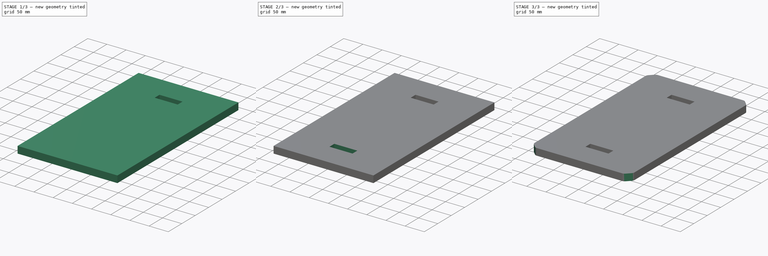
[diagram: build sequence overview — one tinted view per stage of 3, left to right]
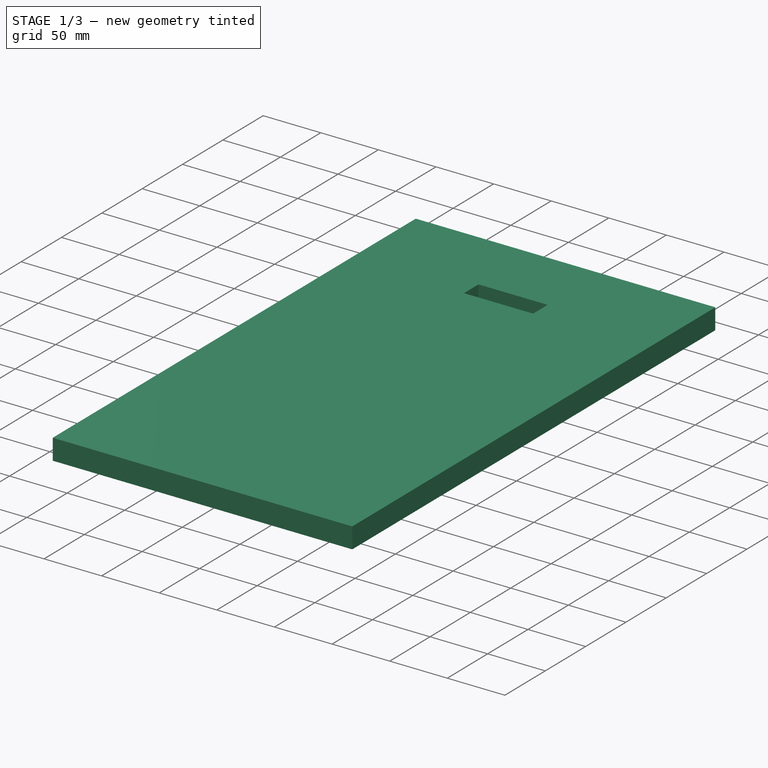
[diagram: stage 1 of 3 — iso view after this stage's code; geometry added in this stage tinted green]
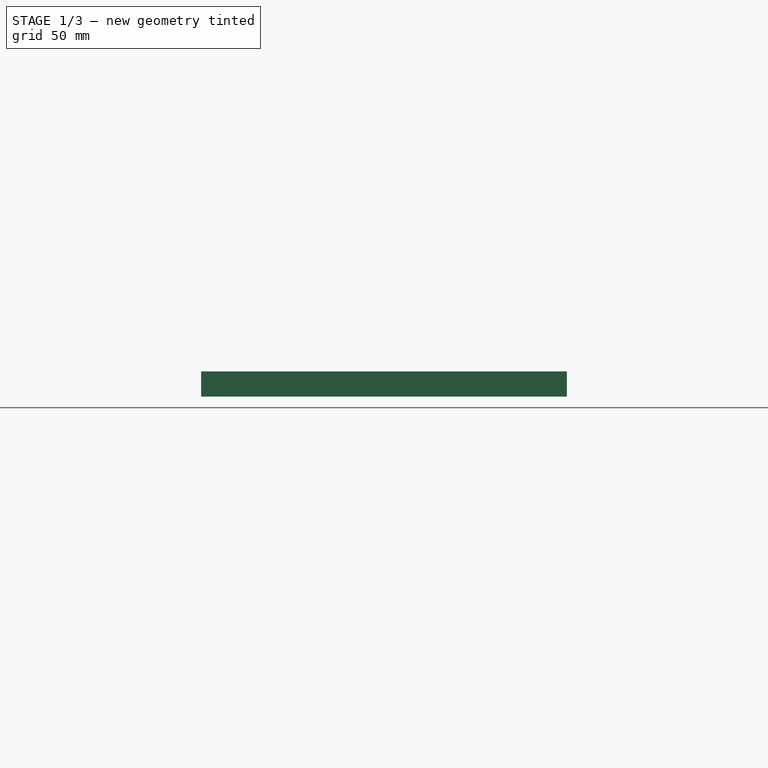
[diagram: stage 1 of 3 — front view after this stage's code; geometry added in this stage tinted green]
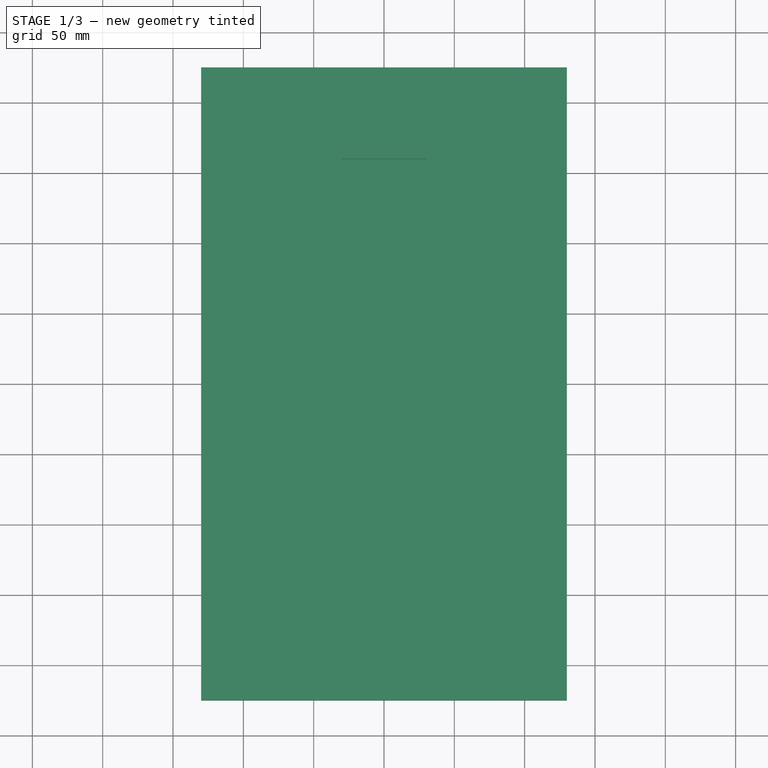
[diagram: stage 1 of 3 — top view after this stage's code; geometry added in this stage tinted green]
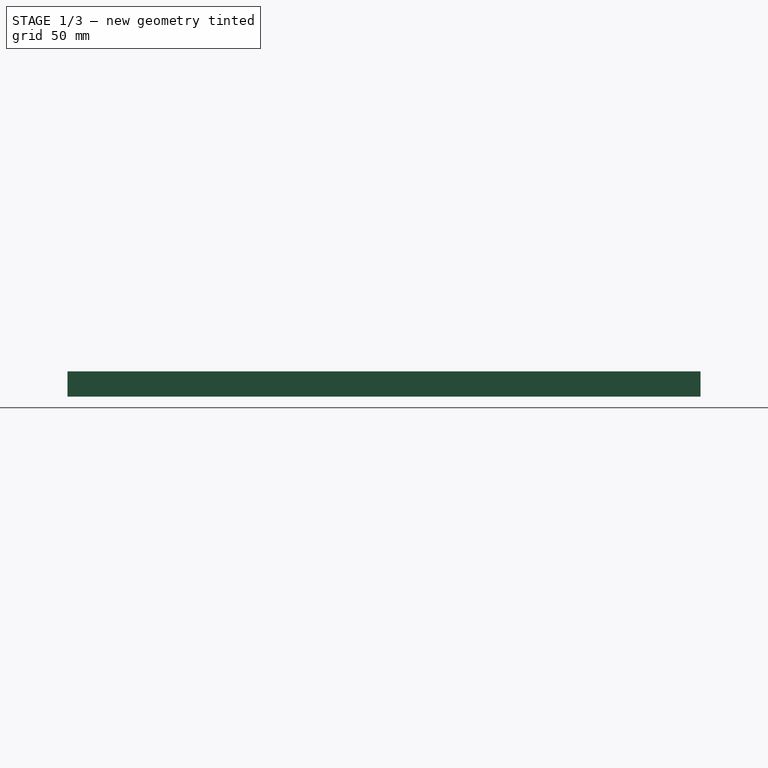
[diagram: stage 1 of 3 — right view after this stage's code; geometry added in this stage tinted green]
FCSTD DOCUMENT  (FreeCAD 0.15R4671 (Git))
Label: CenterPart
License: All rights reserved
LicenseURL: http://en.wikipedia.org/wiki/All_rights_reserved
objects: Sketcher::SketchObject×2, PartDesign::Pad×1, PartDesign::Pocket×1, PartDesign::Mirrored×1, PartDesign::Chamfer×1, PartDesign::Fillet×1, Drawing::FeatureViewPart×1, Drawing::FeaturePage×1
note: 9 computed .brp shape members not serialized (recipe doc carries the construction recipe); baked Part::Feature solids carry a one-line shape summary decoded from their .brp

FEATURE [Sketcher::SketchObject] Sketch
  sketch-geometry (4):
    g0: LineSegment StartX=-130 StartY=225 StartZ=0 EndX=130 EndY=225 EndZ=0
    g1: LineSegment StartX=130 StartY=225 StartZ=0 EndX=130 EndY=-225 EndZ=0
    g2: LineSegment StartX=130 StartY=-225 StartZ=0 EndX=-130 EndY=-225 EndZ=0
    g3: LineSegment StartX=-130 StartY=-225 StartZ=0 EndX=-130 EndY=225 EndZ=0
  constraints (11):
    c: Coincident(g0,g1)
    c: Coincident(g1,g2)
    c: Coincident(g2,g3)
    c: Coincident(g3,g0)
    c: Horizontal(g0)
    c: Horizontal(g2)
    c: Vertical(g1)
    c: Vertical(g3)
    c: Distance(g3) = 450  'Length'
    c: Distance(g0) = 260  'Width'
    c: Symmetric(g0,g1,g-1)
FEATURE [PartDesign::Pad] Pad
  Length = 18
  Length2 = 100
  Sketch = -> Sketch
  Type = 0
FEATURE [Sketcher::SketchObject] Sketch001
  ExternalGeometry = -> [Pad]
  Placement = pos=(0,0,18) rot=(0,0,1;0rad)
  Support = -> Pad [Face6]
  sketch-geometry (4):
    g0: LineSegment StartX=-30 StartY=160 StartZ=0 EndX=30 EndY=160 EndZ=0
    g1: LineSegment StartX=30 StartY=160 StartZ=0 EndX=30 EndY=142 EndZ=0
    g2: LineSegment StartX=30 StartY=142 StartZ=0 EndX=-30 EndY=142 EndZ=0
    g3: LineSegment StartX=-30 StartY=142 StartZ=0 EndX=-30 EndY=160 EndZ=0
  constraints (12):
    c: Coincident(g0,g1)
    c: Coincident(g1,g2)
    c: Coincident(g2,g3)
    c: Coincident(g3,g0)
    c: Horizontal(g0)
    c: Horizontal(g2)
    c: Vertical(g1)
    c: Vertical(g3)
    c: DistanceY(g0,g-3) = 65
    c: Symmetric(g0,g0,g-2)
    c: DistanceY(g0,g1) = -18  'Thickness'
    c: DistanceX(g0,g0) = 60
FEATURE [PartDesign::Pocket] Pocket
  Length = 12
  Sketch = -> Sketch001
  Type = 0
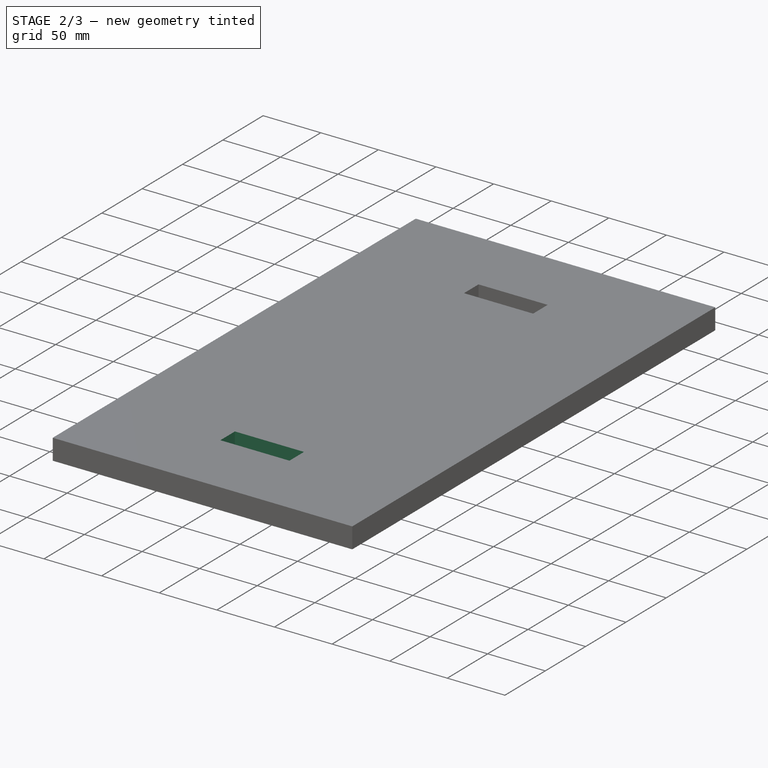
[diagram: stage 2 of 3 — iso view after this stage's code; geometry added in this stage tinted green]
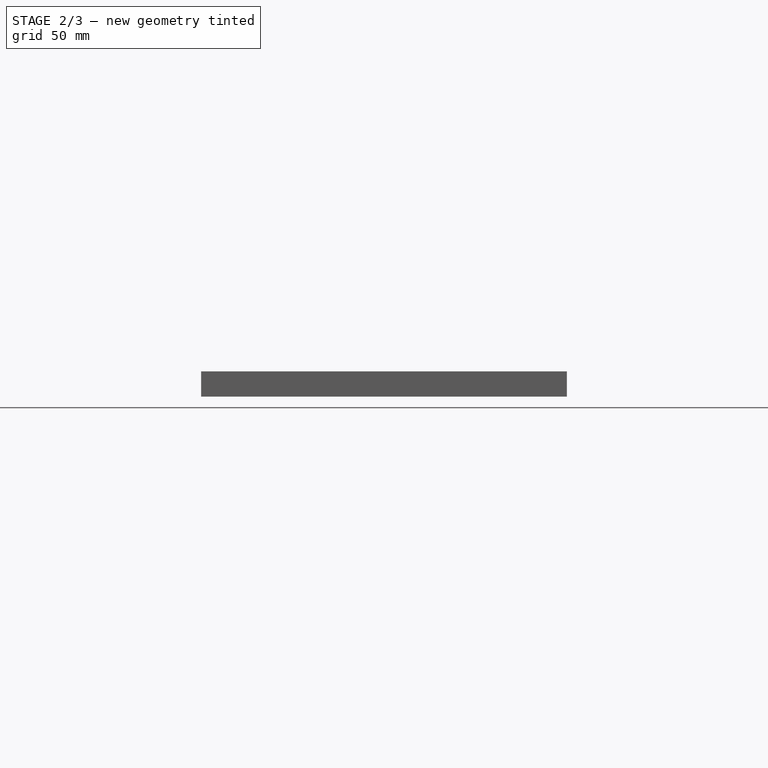
[diagram: stage 2 of 3 — front view after this stage's code; geometry added in this stage tinted green]
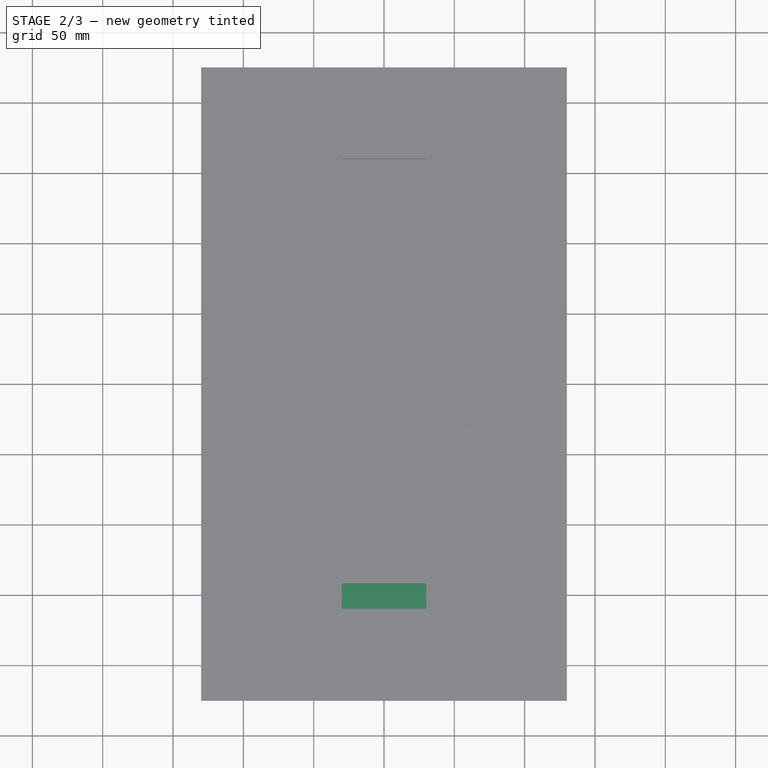
[diagram: stage 2 of 3 — top view after this stage's code; geometry added in this stage tinted green]
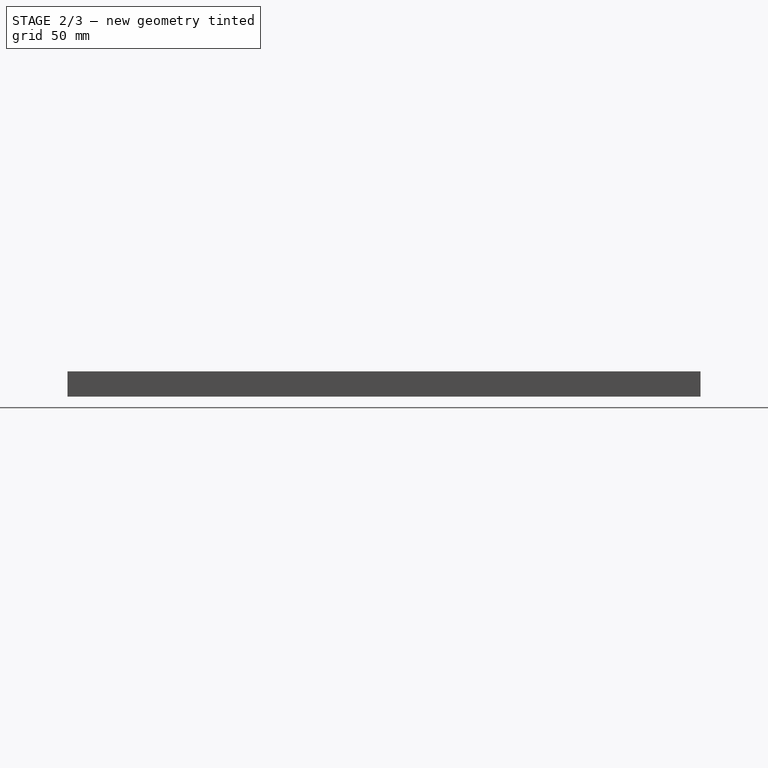
[diagram: stage 2 of 3 — right view after this stage's code; geometry added in this stage tinted green]
FEATURE [PartDesign::Mirrored] Mirrored
  MirrorPlane = -> Sketch001 [H_Axis]
  Originals = -> [Pocket]
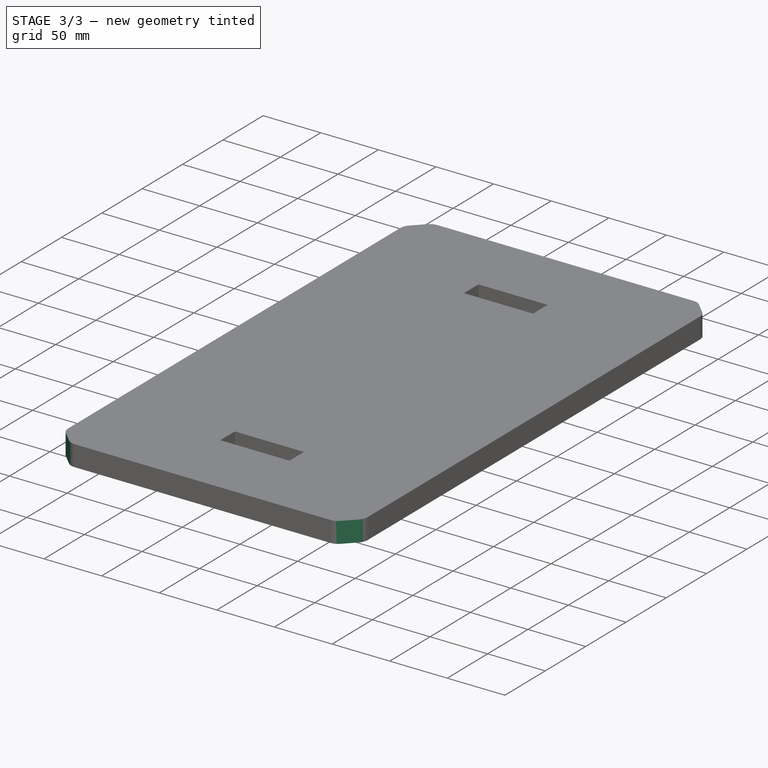
[diagram: stage 3 of 3 — iso view after this stage's code; geometry added in this stage tinted green]
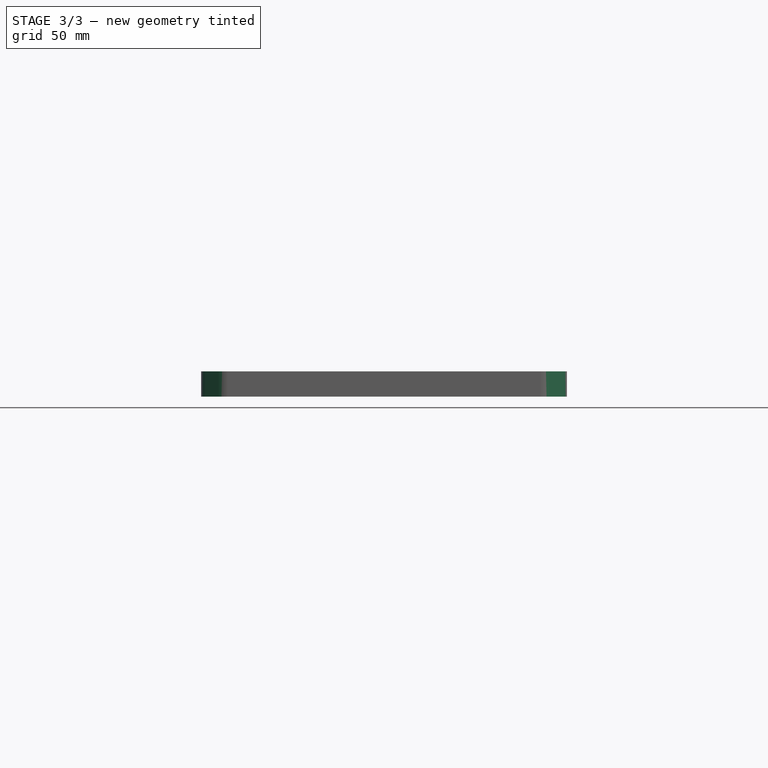
[diagram: stage 3 of 3 — front view after this stage's code; geometry added in this stage tinted green]
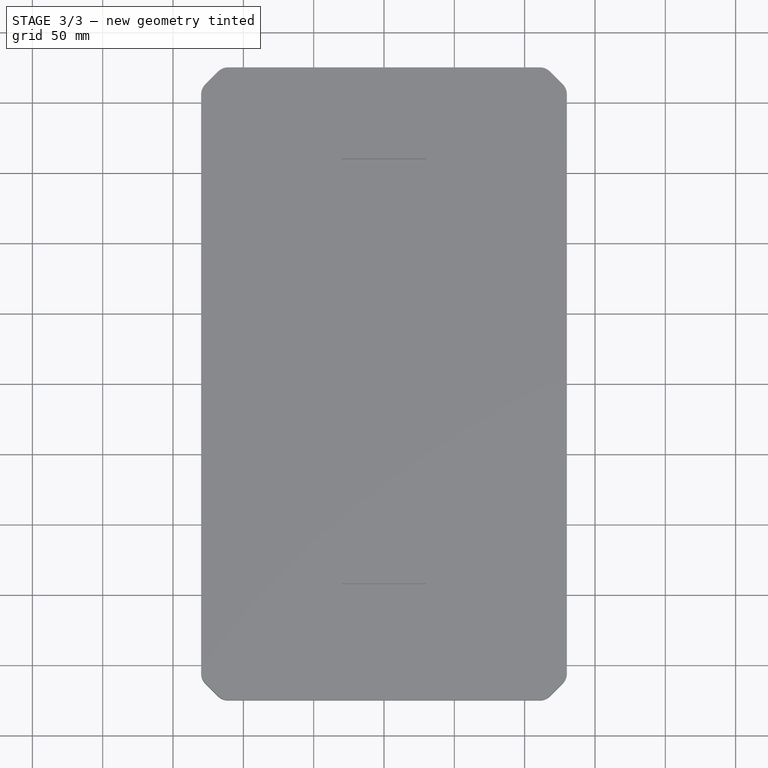
[diagram: stage 3 of 3 — top view after this stage's code; geometry added in this stage tinted green]
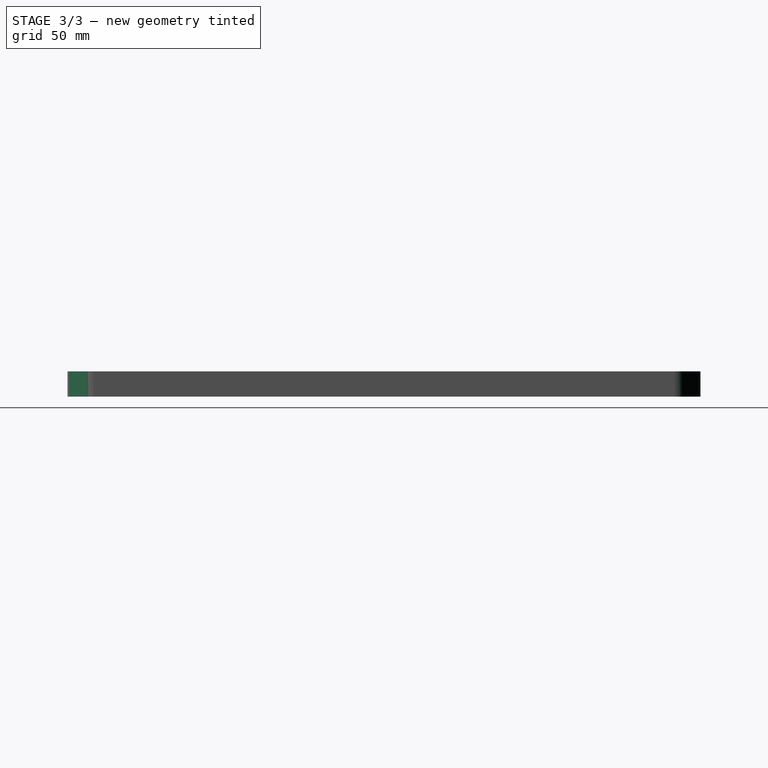
[diagram: stage 3 of 3 — right view after this stage's code; geometry added in this stage tinted green]
FEATURE [PartDesign::Chamfer] Chamfer
  Base = -> Mirrored [Edge5,Edge1,Edge2,Edge8]
  Size = 15
FEATURE [PartDesign::Fillet] Fillet  label="Last"
  Base = -> Chamfer [Edge32,Edge30,Edge31,Edge29,Edge12,Edge2,Edge3,Edge14]
  Radius = 10
FEATURE [Drawing::FeatureViewPart] Ortho  label="Ortho_0_0"
  Direction = (0,0,1)
  HiddenWidth = 0.15
  LineWidth = 0.35
  Rotation = 90
  Scale = 0.5
  ShowHiddenLines = false
  ShowSmoothLines = false
  Source = -> Fillet
  Tolerance = 0.05
  ViewResult = <g id="Ortho_0_0"\n   transform="rotate(90,210,118.5) translate(210,118.5) scale(0.5,0.5)"\n  >\n<g   stroke="rgb(0, 0, 0)"\n   stroke-width="0.7"\n   stroke-linecap="butt"\n   stroke-linejoin="miter"\n   fill="none"\n   transform="scale(1,-1)"\n  >\n<path id= "1" d=" M -110.858 225 L 110.858 225 " />\n<path d="M-110.858 225 A10 10 0 0 1 -117.929 222.071" /><path d="M110.858 225 A10 10 0 0 0 117.929 222.071" /><path id= "4" d=" M -117.929 222.071 L -127.071 212.929 " />\n<path id= "5" d=" M 117.929 222.071 L 127.071 212.929 " />\n<path d="M-127.071 212.929 A10 10 0 0 1 -130 205.858" /><path d="M127.071 212.929 A10 10 0 0 0 130 205.858" /><path id= "8" d=" M -130 -205.858 L -130 205.858 " />\n<path id= "9" d=" M 130 205.858 L 130 -205.858 " />\n<path d="M-130 -205.858 A10 10 0 0 1 -127.071 -212.929" /><path d="M130 -205.858 A10 10 0 0 0 127.071 -212.929" /><path id= "12" d=" M -127.071 -212.929 L -117.929 -222.071 " />\n<path id= "13" d=" M 127.071 -212.929 L 117.929 -222.071 " />\n<path d="M-117.929 -222.071 A10 10 0 0 1 -110.858 -225" /><path d="M117.929 -222.071 A10 10 0 0 0 110.858 -225" /><path id= "16" d=" M 110.858 -225 L -110.858 -225 " />\n<path id= "17" d=" M 30 -142 L -30 -142 " />\n<path id= "18" d=" M -30 -142 L -30 -160 " />\n<path id= "19" d=" M -30 -160 L 30 -160 " />\n<path id= "20" d=" M 30 -160 L 30 -142 " />\n<path id= "21" d=" M -30 160 L 30 160 " />\n<path id= "22" d=" M -30 142 L -30 160 " />\n<path id= "23" d=" M 30 160 L 30 142 " />\n<path id= "24" d=" M 30 142 L -30 142 " />\n<path id= "25" d=" M -30 -142 L -30 -160 " />\n<path id= "26" d=" M -30 142 L -30 160 " />\n</g>\n</g>
  Visible = true
  X = 210
  Y = 118.5
FEATURE [Drawing::FeaturePage] Page
  EditableTexts = AUTHOR NAME | CREATION DATE | SUPERVISOR NAME | CHECK DATE | SCALE | WEIGHT | NUMBER | SHEET | TITLE | SUBTITLE
  Group = -> [Ortho]
  Template = C:/Program Files (x86)/FreeCAD 0.15/data/Mod/Drawing/Templates/A3_Landscape.svg
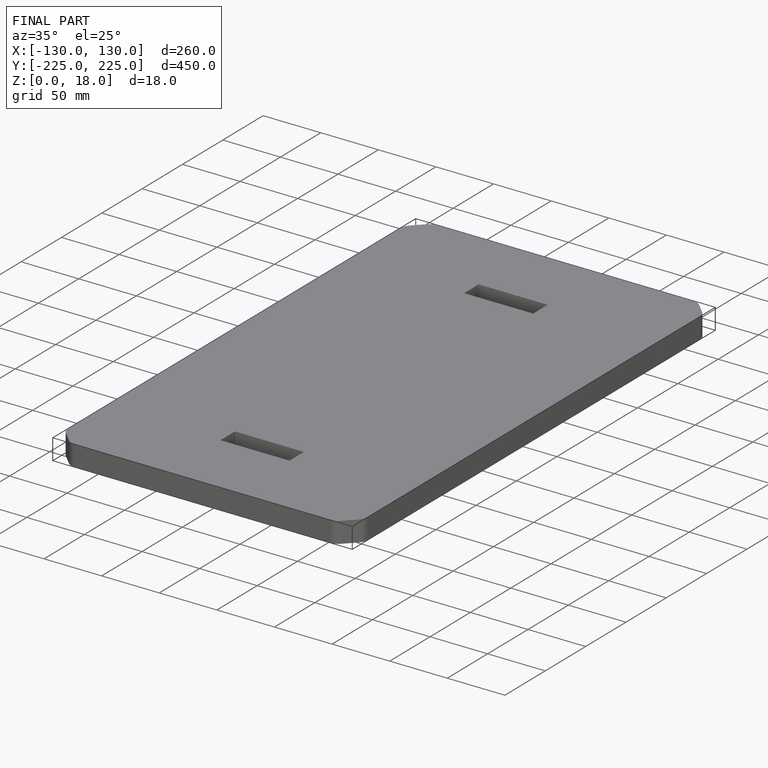
[diagram: finished part — iso view with bounding-box wireframe]
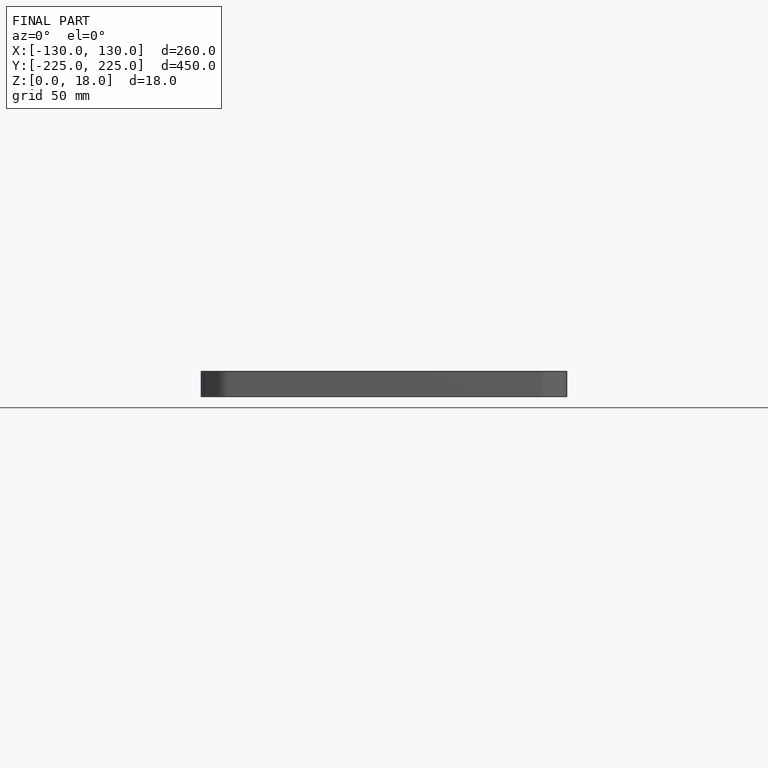
[diagram: finished part — front view with bounding-box wireframe]
